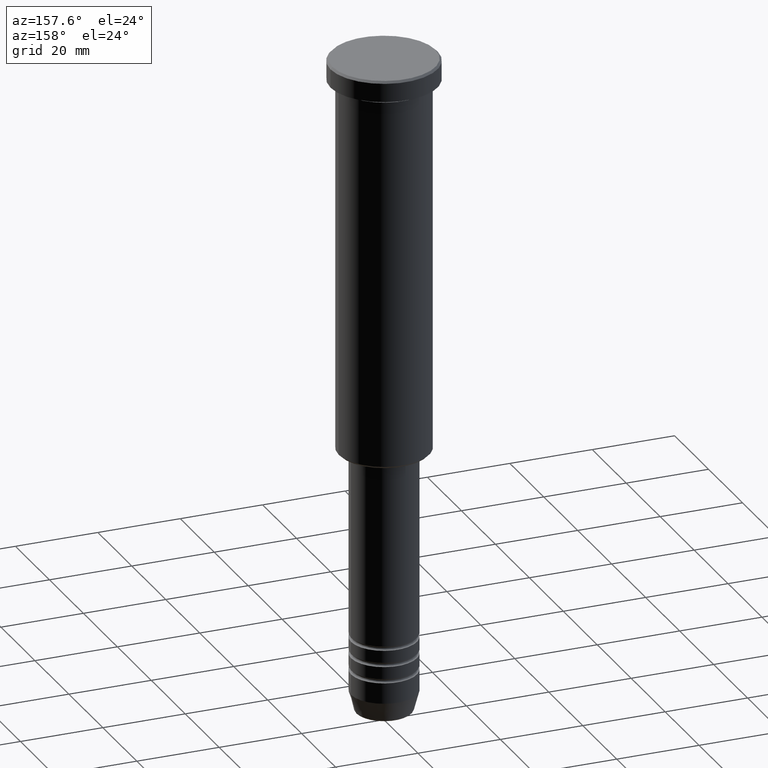
[diagram: clean part render]
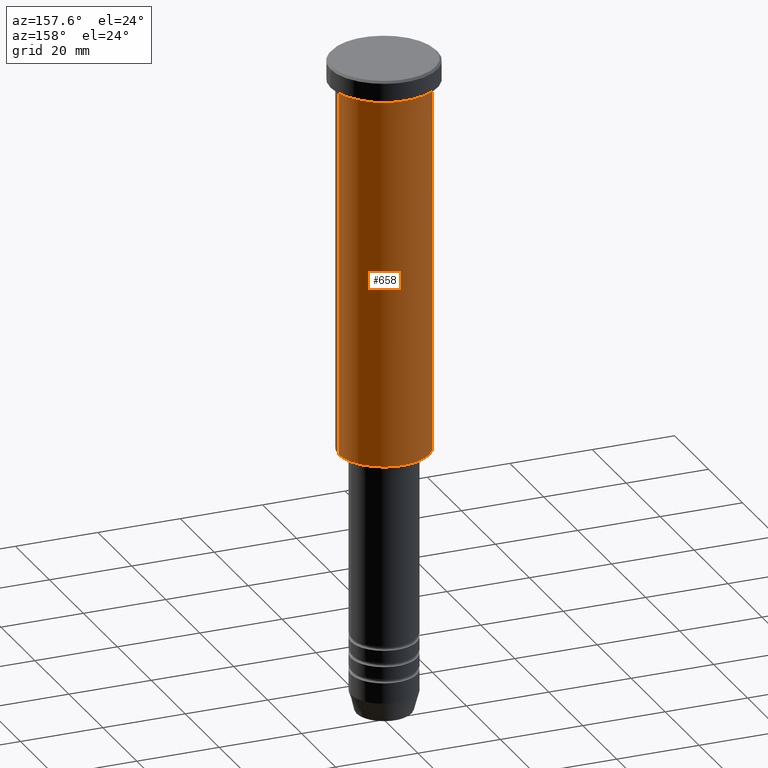
[diagram: same view with one face highlighted and labeled with its STEP entity id]
A machine part, auxiliary view. The second image highlights one B-rep face of the part: STEP entity #658.
In plain terms, the highlighted cylindrical surface (partial cylindrical patch) has radius 11 mm, axis along (-0, -0, 1).
Its self-contained STEP definition (entity closure, byte-faithful):
#2 = CARTESIAN_POINT ( 'NONE',  ( 0.000000000000000000, 0.000000000000000000, 0.000000000000000000 ) ) ;
#17 = CARTESIAN_POINT ( 'NONE',  ( 0.000000000000000000, 0.000000000000000000, -95.50000000000001421 ) ) ;
#135 = VERTEX_POINT ( 'NONE', #544 ) ;
#183 = DIRECTION ( 'NONE',  ( -0.000000000000000000, -0.000000000000000000, 1.000000000000000000 ) ) ;
#251 = AXIS2_PLACEMENT_3D ( 'NONE', #2, #439, #450 ) ;
#336 = CARTESIAN_POINT ( 'NONE',  ( -11.00000000000000000, 1.347111479062088405E-15, -5.999999999999999112 ) ) ;
#344 = EDGE_CURVE ( 'NONE', #597, #558, #471, .T. ) ;
#349 = CIRCLE ( 'NONE', #701, 11.00000000000000000 ) ;
#359 = CARTESIAN_POINT ( 'NONE',  ( -11.00000000000000000, 1.347111479062088405E-15, 0.000000000000000000 ) ) ;
#369 = DIRECTION ( 'NONE',  ( -0.000000000000000000, -0.000000000000000000, 1.000000000000000000 ) ) ;
#434 = CYLINDRICAL_SURFACE ( 'NONE', #251, 11.00000000000000000 ) ;
#439 = DIRECTION ( 'NONE',  ( -0.000000000000000000, -0.000000000000000000, 1.000000000000000000 ) ) ;
#450 = DIRECTION ( 'NONE',  ( 1.000000000000000000, 0.000000000000000000, 0.000000000000000000 ) ) ;
#460 = LINE ( 'NONE', #1114, #506 ) ;
#471 = CIRCLE ( 'NONE', #1098, 11.00000000000000000 ) ;
#506 = VECTOR ( 'NONE', #369, 1000.000000000000000 ) ;
#544 = CARTESIAN_POINT ( 'NONE',  ( -11.00000000000000000, 1.347111479062088405E-15, -95.50000000000001421 ) ) ;
#558 = VERTEX_POINT ( 'NONE', #336 ) ;
#575 = CARTESIAN_POINT ( 'NONE',  ( 0.000000000000000000, 0.000000000000000000, -5.999999999999999112 ) ) ;
#597 = VERTEX_POINT ( 'NONE', #955 ) ;
#624 = DIRECTION ( 'NONE',  ( -0.000000000000000000, -0.000000000000000000, 1.000000000000000000 ) ) ;
#658 = ADVANCED_FACE ( 'NONE', ( #797 ), #434, .T. ) ;
#663 = VECTOR ( 'NONE', #624, 1000.000000000000000 ) ;
#679 = ORIENTED_EDGE ( 'NONE', *, *, #344, .F. ) ;
#701 = AXIS2_PLACEMENT_3D ( 'NONE', #17, #183, #842 ) ;
#703 = ORIENTED_EDGE ( 'NONE', *, *, #1174, .F. ) ;
#731 = EDGE_CURVE ( 'NONE', #135, #558, #1171, .T. ) ;
#747 = EDGE_CURVE ( 'NONE', #812, #135, #349, .T. ) ;
#765 = DIRECTION ( 'NONE',  ( -0.000000000000000000, -0.000000000000000000, 1.000000000000000000 ) ) ;
#797 = FACE_OUTER_BOUND ( 'NONE', #1169, .T. ) ;
#812 = VERTEX_POINT ( 'NONE', #1007 ) ;
#835 = DIRECTION ( 'NONE',  ( 1.000000000000000000, 0.000000000000000000, 0.000000000000000000 ) ) ;
#842 = DIRECTION ( 'NONE',  ( -1.000000000000000000, 0.000000000000000000, 0.000000000000000000 ) ) ;
#876 = ORIENTED_EDGE ( 'NONE', *, *, #747, .T. ) ;
#955 = CARTESIAN_POINT ( 'NONE',  ( 11.00000000000000000, 0.000000000000000000, -5.999999999999999112 ) ) ;
#1007 = CARTESIAN_POINT ( 'NONE',  ( 11.00000000000000000, 0.000000000000000000, -95.50000000000001421 ) ) ;
#1070 = ORIENTED_EDGE ( 'NONE', *, *, #731, .T. ) ;
#1098 = AXIS2_PLACEMENT_3D ( 'NONE', #575, #765, #835 ) ;
#1114 = CARTESIAN_POINT ( 'NONE',  ( 11.00000000000000000, 0.000000000000000000, 0.000000000000000000 ) ) ;
#1169 = EDGE_LOOP ( 'NONE', ( #876, #1070, #679, #703 ) ) ;
#1171 = LINE ( 'NONE', #359, #663 ) ;
#1174 = EDGE_CURVE ( 'NONE', #812, #597, #460, .T. ) ;